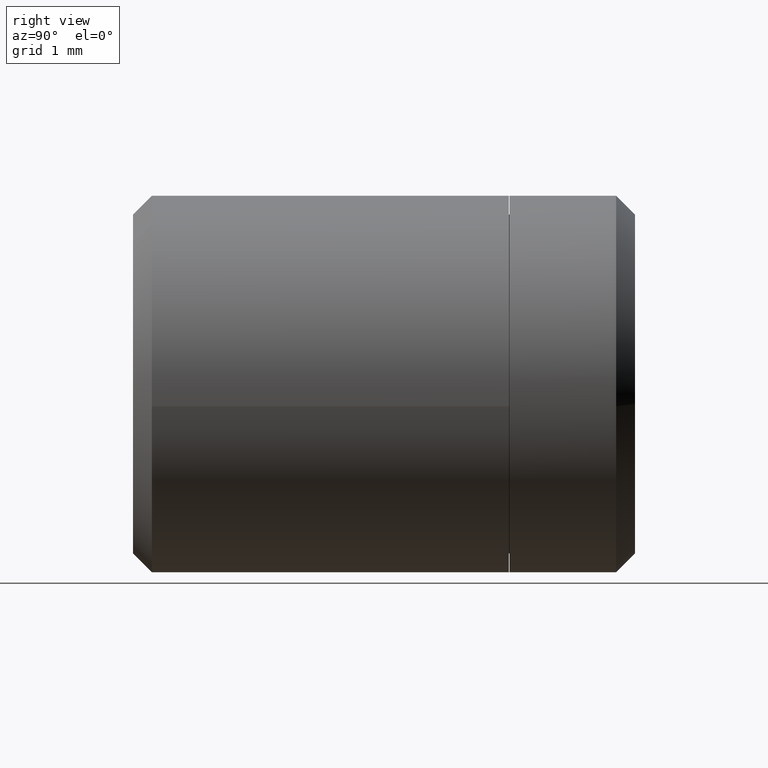
[diagram: clean part render]
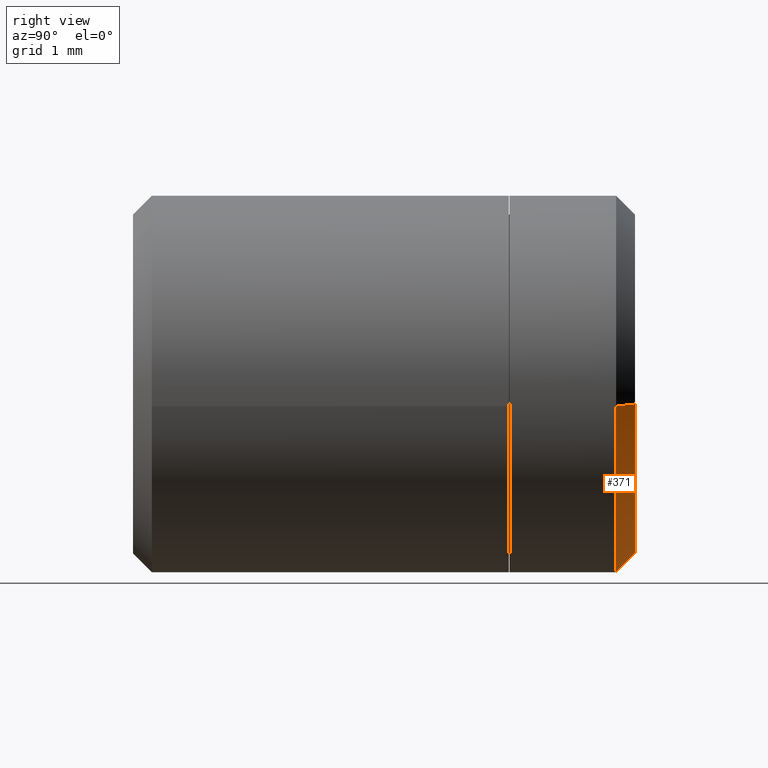
[diagram: same view with one face highlighted and labeled with its STEP entity id]
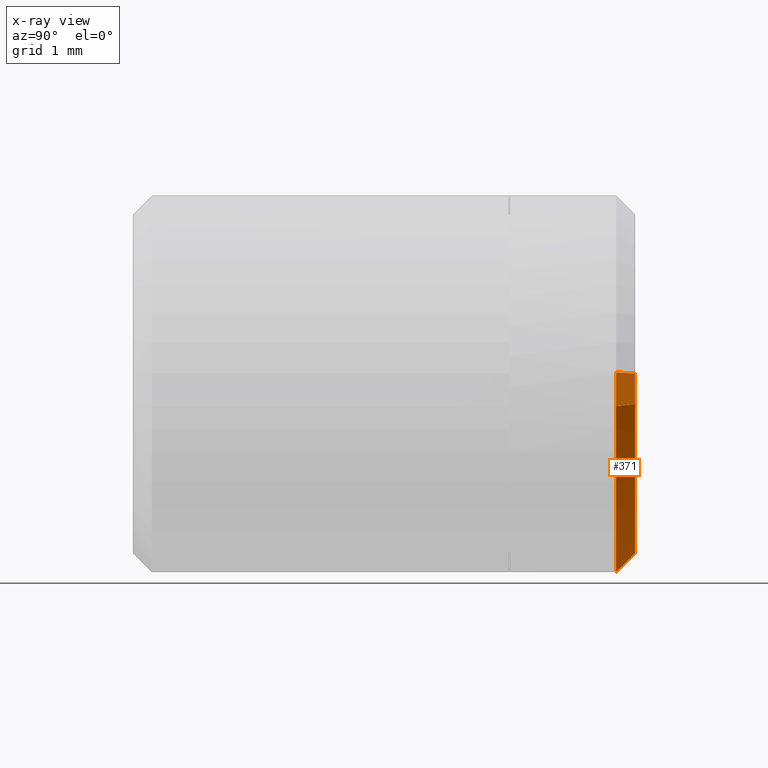
[diagram: x-ray of the same camera — body ghosted, the highlighted face saturated]
A machine part, right view. The second image highlights one B-rep face of the part: STEP entity #371.
The next image is the same camera in x-ray: the body ghosted, the highlighted face saturated — about 17% of this face is hidden behind the body in this view.
In plain terms, the highlighted face is a freeform B-spline surface patch.
Its self-contained STEP definition (entity closure, byte-faithful):
#79=CARTESIAN_POINT('',(-2.994404395265843,7.700004999999138,0.183145618607985));
#80=VERTEX_POINT('',#79);
#161=CARTESIAN_POINT('',(2.979028579091041,7.700004999999360,-0.354102703975353));
#162=VERTEX_POINT('',#161);
#212=CARTESIAN_POINT('',(0.0,7.700005000000000,-3.000000000000003));
#213=VERTEX_POINT('',#212);
#214=CARTESIAN_POINT('',(-2.994404395265842,7.700004999999138,0.183145618607985));
#215=CARTESIAN_POINT('',(-3.0,7.700005000000000,0.091658289902562));
#216=CARTESIAN_POINT('',(-3.0,7.700005000000000,-2.449213E-015));
#217=CARTESIAN_POINT('',(-3.0,7.700005000000000,-3.000000000000003));
#218=CARTESIAN_POINT('',(0.0,7.700005000000000,-3.000000000000003));
#226=(BOUNDED_CURVE()B_SPLINE_CURVE(2,(#214,#215,#216,#217,#218),.UNSPECIFIED.,.F.,.U.)B_SPLINE_CURVE_WITH_KNOTS((3,2,3),(0.739332962241187,0.750000000000000,1.0),.UNSPECIFIED.)CURVE()GEOMETRIC_REPRESENTATION_ITEM()RATIONAL_B_SPLINE_CURVE((0.976072041671527,0.987502787902467,1.0,0.707106781186548,1.0))REPRESENTATION_ITEM(''));
#227=EDGE_CURVE('',#80,#213,#226,.T.);
#229=CARTESIAN_POINT('',(0.0,7.700005000000000,-3.000000000000003));
#230=CARTESIAN_POINT('',(2.664523577845097,7.700004999999999,-3.000000000000003));
#231=CARTESIAN_POINT('',(2.979028579091041,7.700004999999360,-0.354102703975353));
#239=(BOUNDED_CURVE()B_SPLINE_CURVE(2,(#229,#230,#231),.UNSPECIFIED.,.F.,.U.)B_SPLINE_CURVE_WITH_KNOTS((3,3),(0.0,0.229562473515077),.UNSPECIFIED.)CURVE()GEOMETRIC_REPRESENTATION_ITEM()RATIONAL_B_SPLINE_CURVE((1.0,0.731050832853565,0.956026754186774))REPRESENTATION_ITEM(''));
#240=EDGE_CURVE('',#213,#162,#239,.T.);
#268=CARTESIAN_POINT('',(2.681126714191450,7.999999999999664,-0.318692551610173));
#269=VERTEX_POINT('',#268);
#270=CARTESIAN_POINT('',(2.681126714191450,7.999999999999664,-0.318692551610173));
#271=CARTESIAN_POINT('',(2.979028579091041,7.700004999999360,-0.354102703975353));
#272=QUASI_UNIFORM_CURVE('',1,(#270,#271),.UNSPECIFIED.,.F.,.U.);
#273=EDGE_CURVE('',#269,#162,#272,.T.);
#292=CARTESIAN_POINT('',(-2.694964841242808,8.000000118294054,0.164831021563064));
#293=VERTEX_POINT('',#292);
#307=CARTESIAN_POINT('',(-2.694964841242808,8.000000118294054,0.164831021563064));
#308=CARTESIAN_POINT('',(-2.994404395265843,7.700004999999138,0.183145618607985));
#309=QUASI_UNIFORM_CURVE('',1,(#307,#308),.UNSPECIFIED.,.F.,.U.);
#310=EDGE_CURVE('',#293,#80,#309,.T.);
#317=CARTESIAN_POINT('',(-2.687478967839057,8.007499875000001,0.164373255272354));
#318=CARTESIAN_POINT('',(-2.851852223111413,8.007499875000002,-2.523105712566703));
#319=CARTESIAN_POINT('',(-0.164373255272356,8.007499875000001,-2.687478967839060));
#320=CARTESIAN_POINT('',(2.373556752667446,8.007499874999999,-2.842705416883197));
#321=CARTESIAN_POINT('',(2.673679167568948,8.007499875000002,-0.317807297798417));
#322=CARTESIAN_POINT('',(-3.002077530951266,7.692317628124998,0.183614927687874));
#323=CARTESIAN_POINT('',(-3.185692458639141,7.692317628124998,-2.818462603263391));
#324=CARTESIAN_POINT('',(-0.183614927687876,7.692317628124998,-3.002077530951268));
#325=CARTESIAN_POINT('',(2.651407315514781,7.692317628124999,-3.175474919530447));
#326=CARTESIAN_POINT('',(2.986662314379052,7.692317628124998,-0.355010089124575));
#334=(BOUNDED_SURFACE()B_SPLINE_SURFACE(2,1,((#317,#322),(#318,#323),(#319,#324),(#320,#325),(#321,#326)),.UNSPECIFIED.,.F.,.F.,.U.)B_SPLINE_SURFACE_WITH_KNOTS((3,2,3),(2,2),(0.0,4.983299773063225,9.767267555203921),(0.0,0.445737979775999),.UNSPECIFIED.)GEOMETRIC_REPRESENTATION_ITEM()RATIONAL_B_SPLINE_SURFACE(((1.0,1.0),(0.707106781186548,0.707106781186548),(1.0,1.0),(0.718822509939086,0.718822509939086),(0.977505800795127,0.977505800795127)))REPRESENTATION_ITEM('')SURFACE());
#335=ORIENTED_EDGE('',*,*,#240,.F.);
#336=ORIENTED_EDGE('',*,*,#227,.F.);
#337=ORIENTED_EDGE('',*,*,#310,.F.);
#338=CARTESIAN_POINT('',(0.0,8.0,-2.700001000000003));
#339=VERTEX_POINT('',#338);
#340=CARTESIAN_POINT('',(-2.694964841242808,8.000000118294054,0.164831021563064));
#341=CARTESIAN_POINT('',(-2.700000999999999,8.000000000000002,0.082492402201570));
#342=CARTESIAN_POINT('',(-2.700001000000000,8.0,-2.449213E-015));
#343=CARTESIAN_POINT('',(-2.700001000000000,8.0,-2.700001000000003));
#344=CARTESIAN_POINT('',(0.0,8.0,-2.700001000000003));
#352=(BOUNDED_CURVE()B_SPLINE_CURVE(2,(#340,#341,#342,#343,#344),.UNSPECIFIED.,.F.,.U.)B_SPLINE_CURVE_WITH_KNOTS((3,2,3),(0.739332973639528,0.750000000000000,1.0),.UNSPECIFIED.)CURVE()GEOMETRIC_REPRESENTATION_ITEM()RATIONAL_B_SPLINE_CURVE((0.976072066100344,0.987502801256454,1.0,0.707106781186548,1.0))REPRESENTATION_ITEM(''));
#353=EDGE_CURVE('',#293,#339,#352,.T.);
#354=ORIENTED_EDGE('',*,*,#353,.T.);
#355=CARTESIAN_POINT('',(0.0,8.0,-2.700001000000003));
#356=CARTESIAN_POINT('',(2.398072108238451,8.0,-2.700001000000003));
#357=CARTESIAN_POINT('',(2.681126714191450,7.999999999999664,-0.318692551610173));
#365=(BOUNDED_CURVE()B_SPLINE_CURVE(2,(#355,#356,#357),.UNSPECIFIED.,.F.,.U.)B_SPLINE_CURVE_WITH_KNOTS((3,3),(0.0,0.229562473515311),.UNSPECIFIED.)CURVE()GEOMETRIC_REPRESENTATION_ITEM()RATIONAL_B_SPLINE_CURVE((1.0,0.731050832853291,0.956026754187232))REPRESENTATION_ITEM(''));
#366=EDGE_CURVE('',#339,#269,#365,.T.);
#367=ORIENTED_EDGE('',*,*,#366,.T.);
#368=ORIENTED_EDGE('',*,*,#273,.T.);
#369=EDGE_LOOP('',(#335,#336,#337,#354,#367,#368));
#370=FACE_OUTER_BOUND('',#369,.T.);
#371=ADVANCED_FACE('',(#370),#334,.T.);